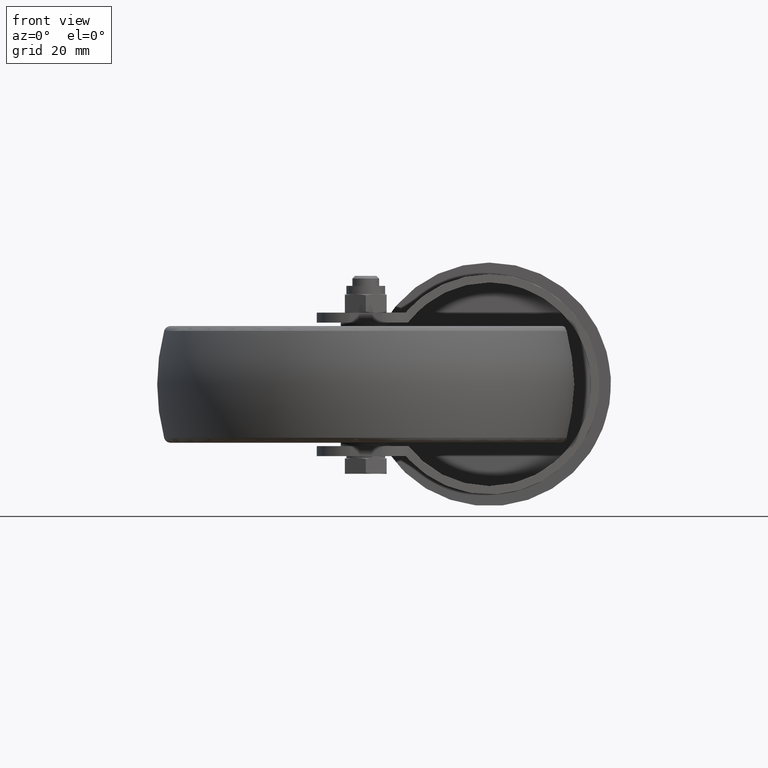
[diagram: clean part render]
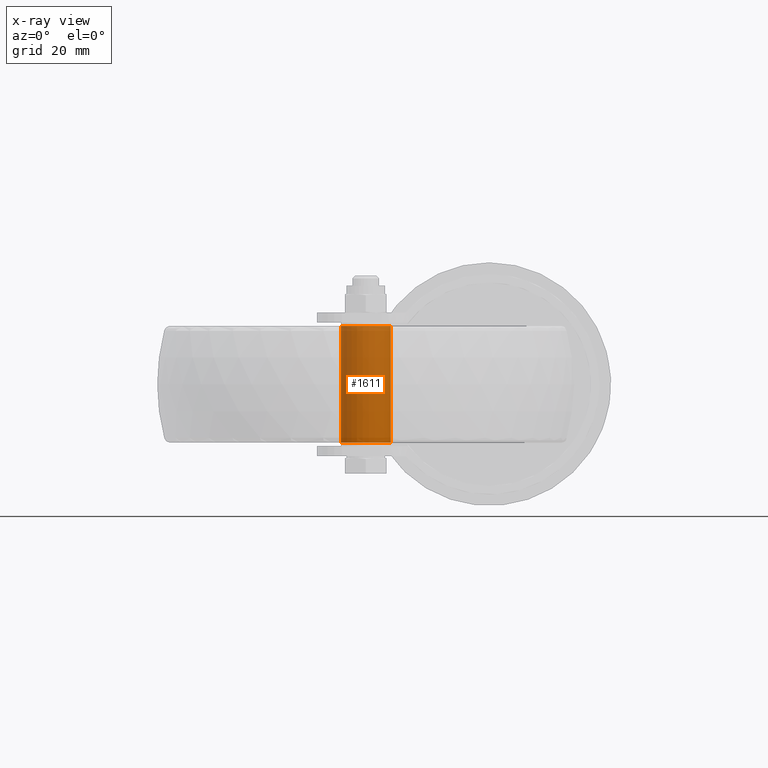
[diagram: x-ray — body ghosted, one internal face saturated and labeled with its STEP entity id]
A machine part, front view, then the same camera in x-ray: the body is ghosted and one INTERNAL B-rep face — a face not visible from any outside direction — is saturated and labeled: STEP entity #1611.
In plain terms, the highlighted cylindrical surface (bore or boss wall) has radius 7.5 mm, axis along (0, 0, 1).
Its self-contained STEP definition (entity closure, byte-faithful):
#300=FACE_OUTER_BOUND('',#423,.T.);
#423=EDGE_LOOP('',(#1416,#1417,#1418,#1419));
#515=CIRCLE('',#1903,7.5);
#516=CIRCLE('',#1905,7.5);
#615=LINE('',#2982,#679);
#679=VECTOR('',#2350,7.5);
#798=VERTEX_POINT('',#2978);
#799=VERTEX_POINT('',#2981);
#1007=EDGE_CURVE('',#798,#798,#515,.T.);
#1008=EDGE_CURVE('',#798,#799,#615,.T.);
#1009=EDGE_CURVE('',#799,#799,#516,.T.);
#1416=ORIENTED_EDGE('',*,*,#1007,.F.);
#1417=ORIENTED_EDGE('',*,*,#1008,.T.);
#1418=ORIENTED_EDGE('',*,*,#1009,.T.);
#1419=ORIENTED_EDGE('',*,*,#1008,.F.);
#1525=CYLINDRICAL_SURFACE('',#1904,7.5);
#1611=ADVANCED_FACE('',(#300),#1525,.F.);
#1903=AXIS2_PLACEMENT_3D('',#2979,#2346,#2347);
#1904=AXIS2_PLACEMENT_3D('',#2980,#2348,#2349);
#1905=AXIS2_PLACEMENT_3D('',#2983,#2351,#2352);
#2346=DIRECTION('center_axis',(0.,0.,1.));
#2347=DIRECTION('ref_axis',(1.,0.,0.));
#2348=DIRECTION('center_axis',(0.,0.,1.));
#2349=DIRECTION('ref_axis',(1.,0.,0.));
#2350=DIRECTION('',(0.,0.,1.));
#2351=DIRECTION('center_axis',(0.,0.,1.));
#2352=DIRECTION('ref_axis',(1.,0.,0.));
#2978=CARTESIAN_POINT('',(-7.5,-9.18485099360515E-16,-17.5));
#2979=CARTESIAN_POINT('Origin',(0.,0.,-17.5));
#2980=CARTESIAN_POINT('Origin',(0.,0.,17.5));
#2981=CARTESIAN_POINT('',(-7.5,-9.18485099360515E-16,17.5));
#2982=CARTESIAN_POINT('',(-7.5,-9.18485099360515E-16,17.5));
#2983=CARTESIAN_POINT('Origin',(0.,0.,17.5));